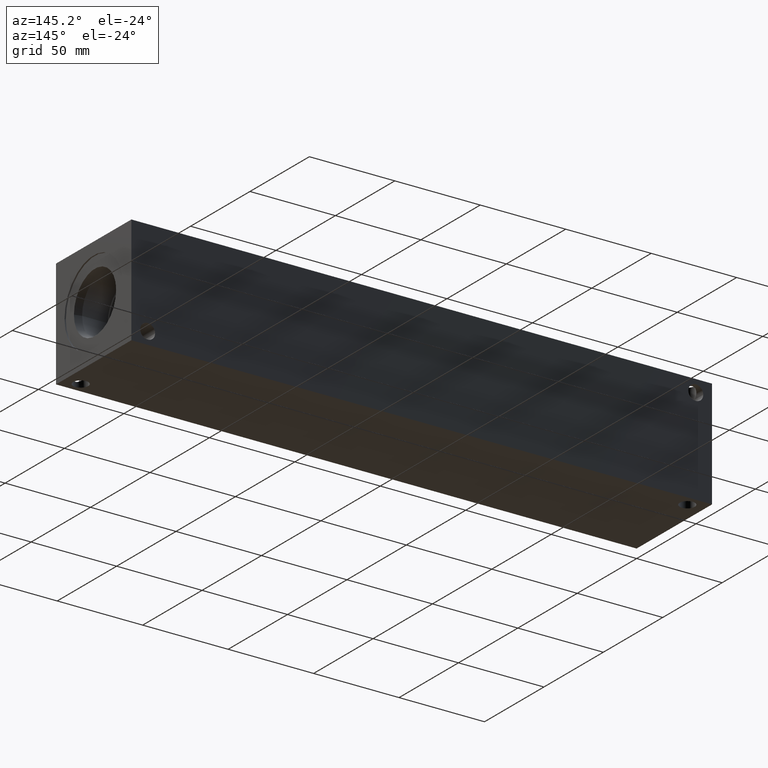
[diagram: clean part render]
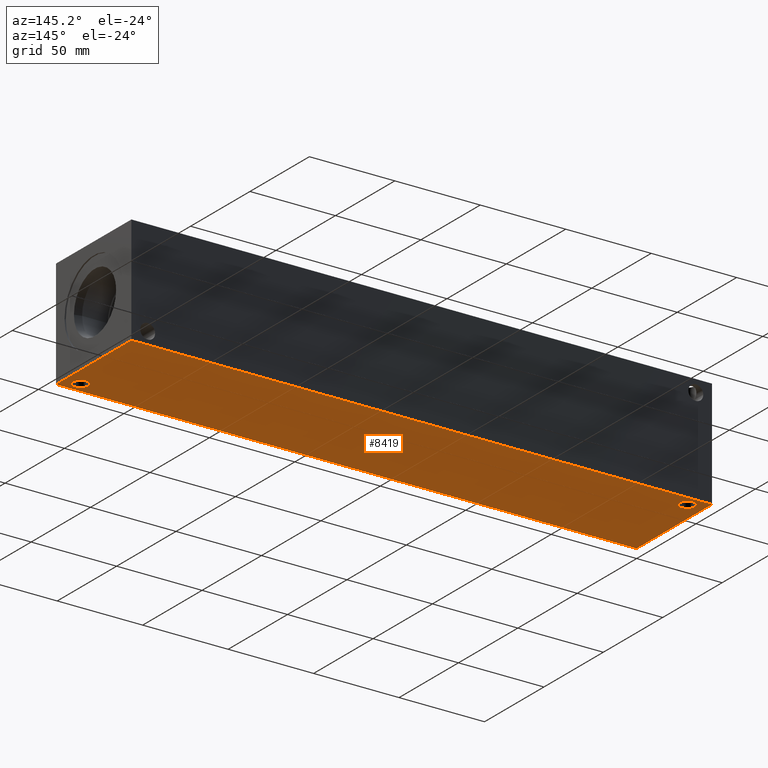
[diagram: same view with one face highlighted and labeled with its STEP entity id]
A machine part, auxiliary view. The second image highlights one B-rep face of the part: STEP entity #8419.
In plain terms, the highlighted planar face has unit normal (0, 0, 1).
Its self-contained STEP definition (entity closure, byte-faithful):
#266=CIRCLE('',#8886,4.3688);
#267=CIRCLE('',#8888,4.3688);
#375=FACE_BOUND('',#1606,.T.);
#376=FACE_BOUND('',#1607,.T.);
#1118=FACE_OUTER_BOUND('',#1605,.T.);
#1605=EDGE_LOOP('',(#7441,#7442,#7443,#7444));
#1606=EDGE_LOOP('',(#7445));
#1607=EDGE_LOOP('',(#7446));
#2354=LINE('',#14675,#3108);
#2357=LINE('',#14680,#3111);
#2359=LINE('',#14684,#3113);
#2361=LINE('',#14687,#3115);
#3108=VECTOR('',#10813,10.);
#3111=VECTOR('',#10818,10.);
#3113=VECTOR('',#10822,10.);
#3115=VECTOR('',#10826,10.);
#3858=VERTEX_POINT('',#14519);
#3859=VERTEX_POINT('',#14523);
#3900=VERTEX_POINT('',#14673);
#3901=VERTEX_POINT('',#14674);
#3902=VERTEX_POINT('',#14679);
#3903=VERTEX_POINT('',#14683);
#5003=EDGE_CURVE('',#3858,#3858,#266,.T.);
#5005=EDGE_CURVE('',#3859,#3859,#267,.T.);
#5077=EDGE_CURVE('',#3900,#3901,#2354,.T.);
#5080=EDGE_CURVE('',#3902,#3900,#2357,.T.);
#5082=EDGE_CURVE('',#3903,#3902,#2359,.T.);
#5084=EDGE_CURVE('',#3901,#3903,#2361,.T.);
#7441=ORIENTED_EDGE('',*,*,#5084,.F.);
#7442=ORIENTED_EDGE('',*,*,#5077,.F.);
#7443=ORIENTED_EDGE('',*,*,#5080,.F.);
#7444=ORIENTED_EDGE('',*,*,#5082,.F.);
#7445=ORIENTED_EDGE('',*,*,#5003,.T.);
#7446=ORIENTED_EDGE('',*,*,#5005,.T.);
#7688=PLANE('',#8980);
#8419=ADVANCED_FACE('',(#1118,#375,#376),#7688,.F.);
#8886=AXIS2_PLACEMENT_3D('',#14521,#10612,#10613);
#8888=AXIS2_PLACEMENT_3D('',#14525,#10617,#10618);
#8980=AXIS2_PLACEMENT_3D('',#14689,#10829,#10830);
#10612=DIRECTION('center_axis',(0.,0.,1.));
#10613=DIRECTION('ref_axis',(1.,0.,0.));
#10617=DIRECTION('center_axis',(0.,0.,1.));
#10618=DIRECTION('ref_axis',(1.,0.,0.));
#10813=DIRECTION('',(0.,-1.,0.));
#10818=DIRECTION('',(-1.,0.,0.));
#10822=DIRECTION('',(0.,1.,0.));
#10826=DIRECTION('',(1.,0.,0.));
#10829=DIRECTION('center_axis',(0.,0.,1.));
#10830=DIRECTION('ref_axis',(1.,0.,0.));
#14519=CARTESIAN_POINT('',(325.8312,7.1374,0.));
#14521=CARTESIAN_POINT('Origin',(330.2,7.1374,0.));
#14523=CARTESIAN_POINT('',(5.1562,56.3626,0.));
#14525=CARTESIAN_POINT('Origin',(9.525,56.3626,0.));
#14673=CARTESIAN_POINT('',(0.,63.5,0.));
#14674=CARTESIAN_POINT('',(0.,0.,0.));
#14675=CARTESIAN_POINT('',(0.,63.5,0.));
#14679=CARTESIAN_POINT('',(339.725,63.5,0.));
#14680=CARTESIAN_POINT('',(339.725,63.5,0.));
#14683=CARTESIAN_POINT('',(339.725,0.,0.));
#14684=CARTESIAN_POINT('',(339.725,0.,0.));
#14687=CARTESIAN_POINT('',(0.,0.,0.));
#14689=CARTESIAN_POINT('Origin',(169.8625,31.75,0.));